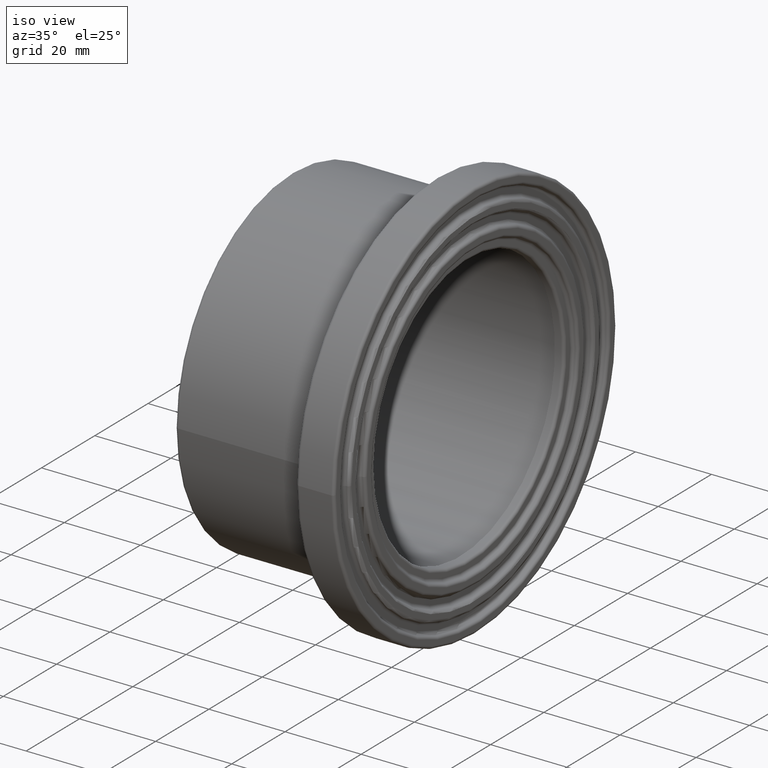
[diagram: clean part render]
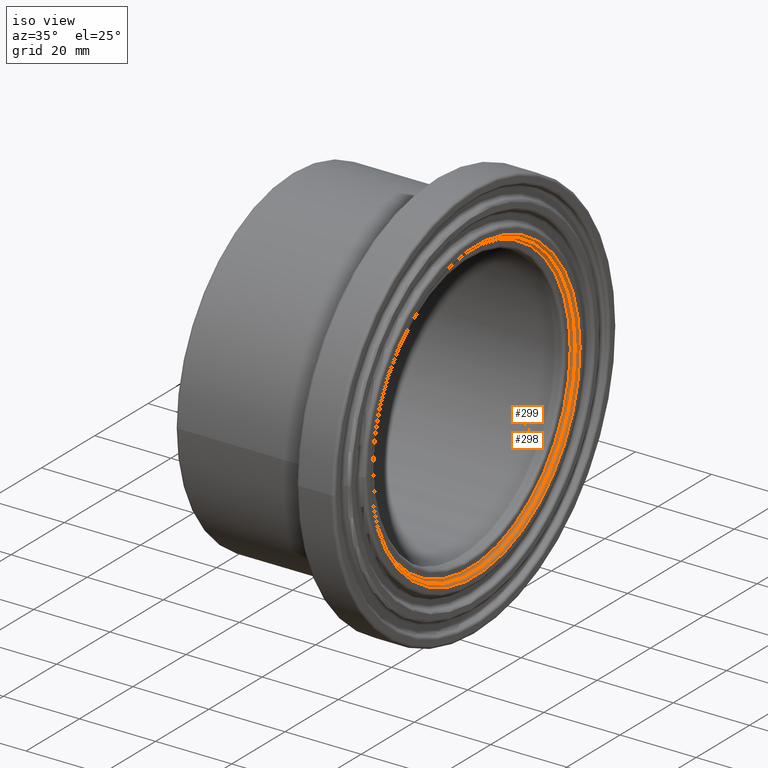
[diagram: same view with one multi-face feature highlighted, each face labeled with its STEP entity id]
A machine part, iso view. The highlighted faces form ONE feature: a constant-radius fillet chain: 2 tangent blend faces with common blend radius 0.75 mm. The faces share edges in the B-rep.
Their STEP definitions:
[1] entity #298 (Torus):
#31=FACE_BOUND('',#91,.T.);
#59=FACE_OUTER_BOUND('',#90,.T.);
#90=EDGE_LOOP('',(#230));
#91=EDGE_LOOP('',(#231));
#142=CIRCLE('',#329,37.7708333333333);
#144=CIRCLE('',#333,38.5208333333333);
#170=VERTEX_POINT('',#502);
#172=VERTEX_POINT('',#508);
#198=EDGE_CURVE('',#170,#170,#142,.T.);
#200=EDGE_CURVE('',#172,#172,#144,.T.);
#230=ORIENTED_EDGE('',*,*,#198,.T.);
#231=ORIENTED_EDGE('',*,*,#200,.F.);
#281=TOROIDAL_SURFACE('',#332,37.7708333333333,0.75);
#298=ADVANCED_FACE('',(#59,#31),#281,.F.);
#329=AXIS2_PLACEMENT_3D('',#503,#391,#392);
#332=AXIS2_PLACEMENT_3D('',#507,#397,#398);
#333=AXIS2_PLACEMENT_3D('',#509,#399,#400);
#391=DIRECTION('center_axis',(-1.,0.,0.));
#392=DIRECTION('ref_axis',(0.,1.,6.12323399573677E-17));
#397=DIRECTION('center_axis',(-1.,0.,0.));
#398=DIRECTION('ref_axis',(0.,0.,1.));
#399=DIRECTION('center_axis',(-1.,0.,0.));
#400=DIRECTION('ref_axis',(0.,1.,6.12323399573677E-17));
#502=CARTESIAN_POINT('',(46.5,-37.7708333333333,2.31279650713974E-15));
#503=CARTESIAN_POINT('Origin',(46.5,0.,0.));
#507=CARTESIAN_POINT('Origin',(47.25,0.,0.));
#508=CARTESIAN_POINT('',(47.25,-38.5208333333333,2.35872076210777E-15));
#509=CARTESIAN_POINT('Origin',(47.25,0.,0.));
[2] entity #299 (Torus):
#32=FACE_BOUND('',#93,.T.);
#60=FACE_OUTER_BOUND('',#92,.T.);
#92=EDGE_LOOP('',(#232));
#93=EDGE_LOOP('',(#233));
#144=CIRCLE('',#333,38.5208333333333);
#145=CIRCLE('',#335,39.2708333333333);
#172=VERTEX_POINT('',#508);
#173=VERTEX_POINT('',#511);
#200=EDGE_CURVE('',#172,#172,#144,.T.);
#201=EDGE_CURVE('',#173,#173,#145,.T.);
#232=ORIENTED_EDGE('',*,*,#200,.T.);
#233=ORIENTED_EDGE('',*,*,#201,.T.);
#282=TOROIDAL_SURFACE('',#334,39.2708333333333,0.75);
#299=ADVANCED_FACE('',(#60,#32),#282,.T.);
#333=AXIS2_PLACEMENT_3D('',#509,#399,#400);
#334=AXIS2_PLACEMENT_3D('',#510,#401,#402);
#335=AXIS2_PLACEMENT_3D('',#512,#403,#404);
#399=DIRECTION('center_axis',(-1.,0.,0.));
#400=DIRECTION('ref_axis',(0.,1.,6.12323399573677E-17));
#401=DIRECTION('center_axis',(-1.,0.,0.));
#402=DIRECTION('ref_axis',(0.,0.,1.));
#403=DIRECTION('center_axis',(1.,0.,0.));
#404=DIRECTION('ref_axis',(0.,1.,6.12323399573677E-17));
#508=CARTESIAN_POINT('',(47.25,-38.5208333333333,2.35872076210777E-15));
#509=CARTESIAN_POINT('Origin',(47.25,0.,0.));
#510=CARTESIAN_POINT('Origin',(47.25,0.,0.));
#511=CARTESIAN_POINT('',(48.,-39.2708333333333,-7.21393505122738E-15));
#512=CARTESIAN_POINT('Origin',(48.,0.,0.));